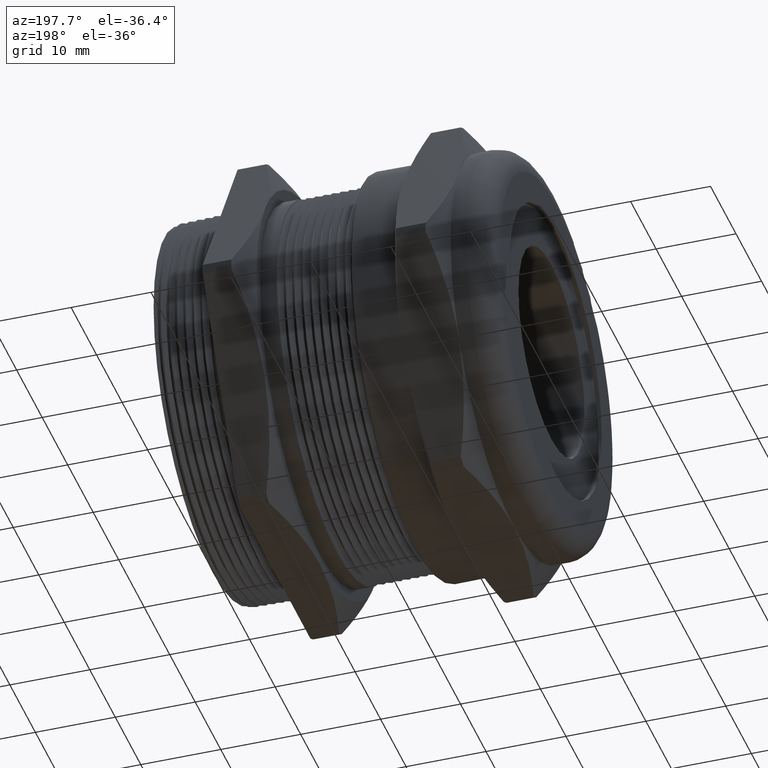
[diagram: clean part render]
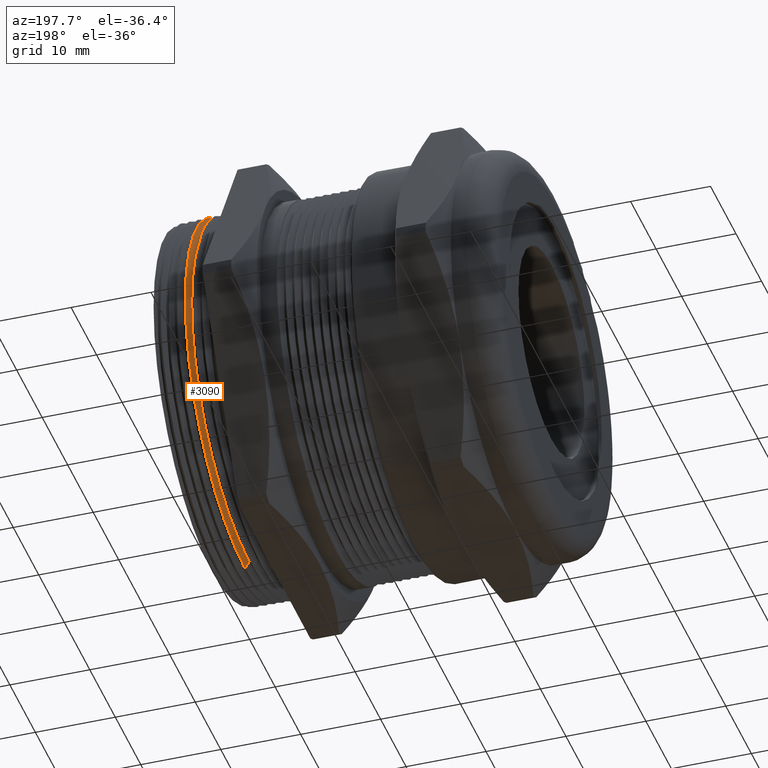
[diagram: same view with one face highlighted and labeled with its STEP entity id]
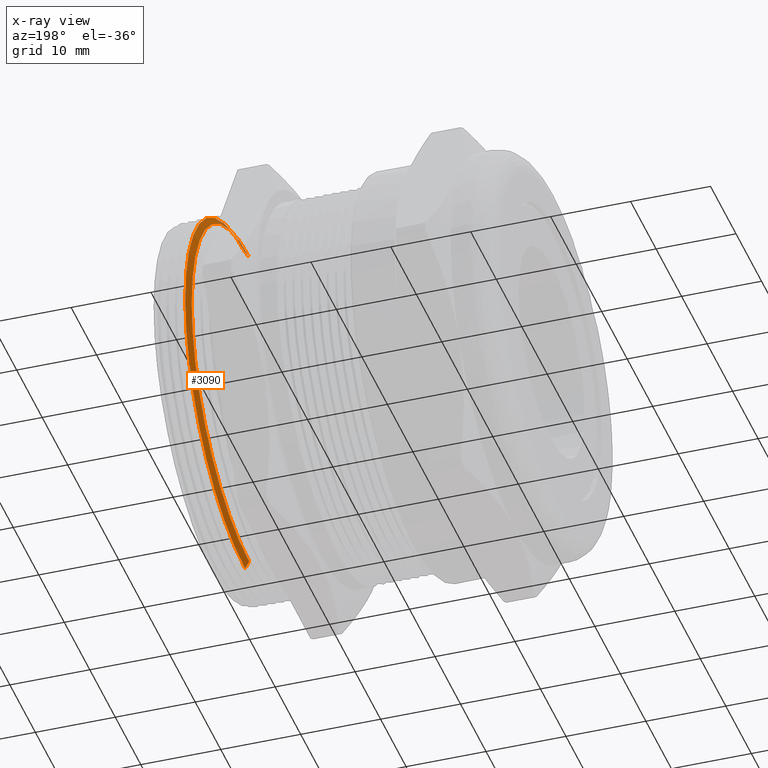
[diagram: x-ray of the same camera — body ghosted, the highlighted face saturated]
A machine part, auxiliary view. The second image highlights one B-rep face of the part: STEP entity #3090.
The next image is the same camera in x-ray: the body ghosted, the highlighted face saturated — about 2% of this face is hidden behind the body in this view.
In plain terms, the highlighted conical surface has half-angle 58.5 deg.
Its self-contained STEP definition (entity closure, byte-faithful):
#614 = CARTESIAN_POINT ( 'NONE',  ( 0.6640475377213820300, 0.0000000000000000000, 0.0000000000000000000 ) ) ;
#615 = AXIS2_PLACEMENT_3D ( 'NONE', #614, #674, #673 ) ;
#616 = CIRCLE ( 'NONE', #615, 0.8874223806488705800 ) ;
#617 = CARTESIAN_POINT ( 'NONE',  ( 0.6640475377213820300, 0.0000000000000000000, 0.8874223806488705800 ) ) ;
#618 = DIRECTION ( 'NONE',  ( 0.0000000000000000000, 0.0000000000000000000, -1.000000000000000000 ) ) ;
#619 = DIRECTION ( 'NONE',  ( 1.000000000000000000, 0.0000000000000000000, 0.0000000000000000000 ) ) ;
#620 = CARTESIAN_POINT ( 'NONE',  ( 0.6640475377213820300, 0.0000000000000000000, 0.0000000000000000000 ) ) ;
#621 = AXIS2_PLACEMENT_3D ( 'NONE', #620, #619, #618 ) ;
#622 = CONICAL_SURFACE ( 'NONE', #621, 0.8874223806488705800, 1.021017612416689200 ) ;
#623 = FACE_OUTER_BOUND ( 'NONE', #3091, .T. ) ;
#657 = DIRECTION ( 'NONE',  ( 0.5224985647159433600, 0.0000000000000000000, -0.8526401643540955100 ) ) ;
#658 = VECTOR ( 'NONE', #657, 39.37007874015748900 ) ;
#659 = CARTESIAN_POINT ( 'NONE',  ( 0.6640475377213820300, 0.0000000000000000000, -0.8874223806488705800 ) ) ;
#660 = LINE ( 'NONE', #659, #658 ) ;
#661 = CARTESIAN_POINT ( 'NONE',  ( 0.6846733609658350900, 1.127998488281948300E-016, -0.9210806651087520800 ) ) ;
#662 = DIRECTION ( 'NONE',  ( 0.0000000000000000000, 0.0000000000000000000, -1.000000000000000000 ) ) ;
#663 = DIRECTION ( 'NONE',  ( -1.000000000000000000, 0.0000000000000000000, 0.0000000000000000000 ) ) ;
#664 = CARTESIAN_POINT ( 'NONE',  ( 0.6846733609658350900, 0.0000000000000000000, 0.0000000000000000000 ) ) ;
#665 = AXIS2_PLACEMENT_3D ( 'NONE', #664, #663, #662 ) ;
#666 = CIRCLE ( 'NONE', #665, 0.9210806651087520800 ) ;
#667 = CARTESIAN_POINT ( 'NONE',  ( 0.6846733609658350900, 0.0000000000000000000, 0.9210806651087520800 ) ) ;
#668 = DIRECTION ( 'NONE',  ( 0.5224985647159433600, 1.044183048100716200E-016, 0.8526401643540955100 ) ) ;
#669 = VECTOR ( 'NONE', #668, 39.37007874015748900 ) ;
#670 = CARTESIAN_POINT ( 'NONE',  ( 0.6640475377213820300, 1.086778977953363500E-016, 0.8874223806488705800 ) ) ;
#671 = LINE ( 'NONE', #670, #669 ) ;
#672 = CARTESIAN_POINT ( 'NONE',  ( 0.6640475377213820300, 1.108021474241201600E-016, -0.8874223806488705800 ) ) ;
#673 = DIRECTION ( 'NONE',  ( 0.0000000000000000000, 0.0000000000000000000, 1.000000000000000000 ) ) ;
#674 = DIRECTION ( 'NONE',  ( -1.000000000000000000, 0.0000000000000000000, 0.0000000000000000000 ) ) ;
#3090 = ADVANCED_FACE ( 'NONE', ( #623 ), #622, .T. ) ;
#3091 = EDGE_LOOP ( 'NONE', ( #3092, #3096, #3099, #3102 ) ) ;
#3092 = ORIENTED_EDGE ( 'NONE', *, *, #3094, .F. ) ;
#3093 = VERTEX_POINT ( 'NONE', #617 ) ;
#3094 = EDGE_CURVE ( 'NONE', #3093, #3095, #616, .T. ) ;
#3095 = VERTEX_POINT ( 'NONE', #672 ) ;
#3096 = ORIENTED_EDGE ( 'NONE', *, *, #3097, .T. ) ;
#3097 = EDGE_CURVE ( 'NONE', #3093, #3098, #671, .T. ) ;
#3098 = VERTEX_POINT ( 'NONE', #667 ) ;
#3099 = ORIENTED_EDGE ( 'NONE', *, *, #3100, .T. ) ;
#3100 = EDGE_CURVE ( 'NONE', #3098, #3101, #666, .T. ) ;
#3101 = VERTEX_POINT ( 'NONE', #661 ) ;
#3102 = ORIENTED_EDGE ( 'NONE', *, *, #3103, .F. ) ;
#3103 = EDGE_CURVE ( 'NONE', #3095, #3101, #660, .T. ) ;